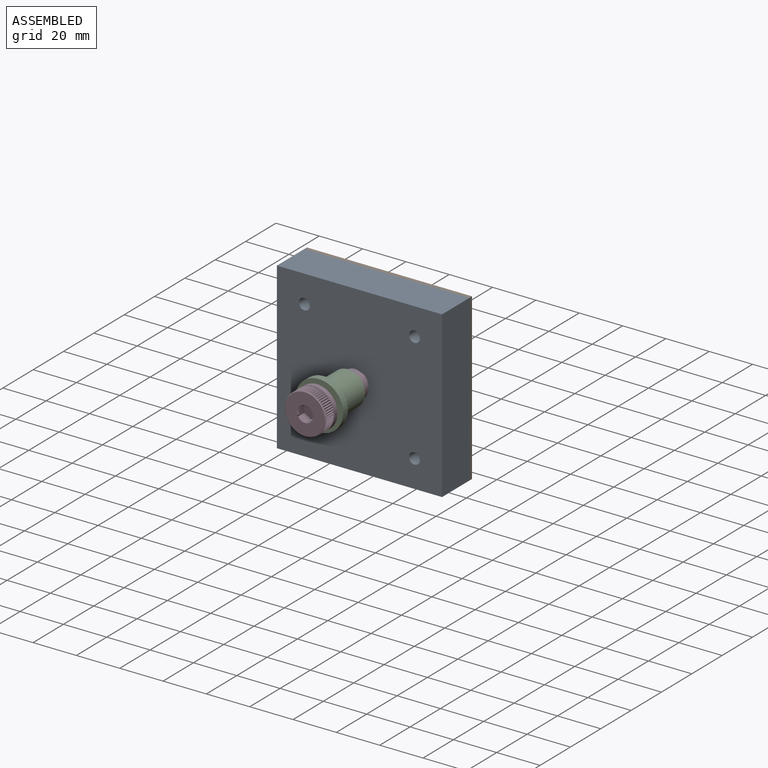
[diagram: assembled view]
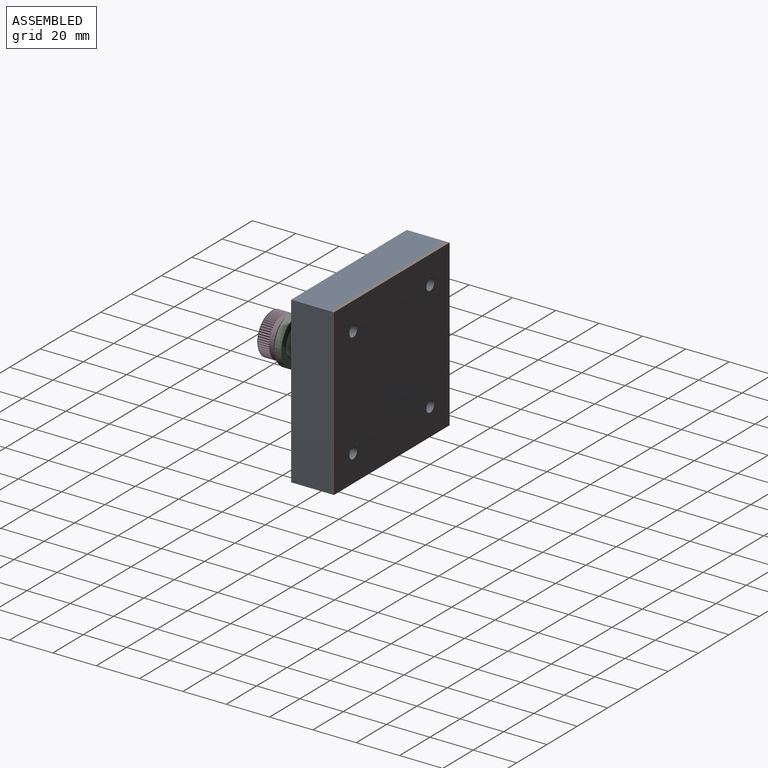
[diagram: assembled view, second angle]
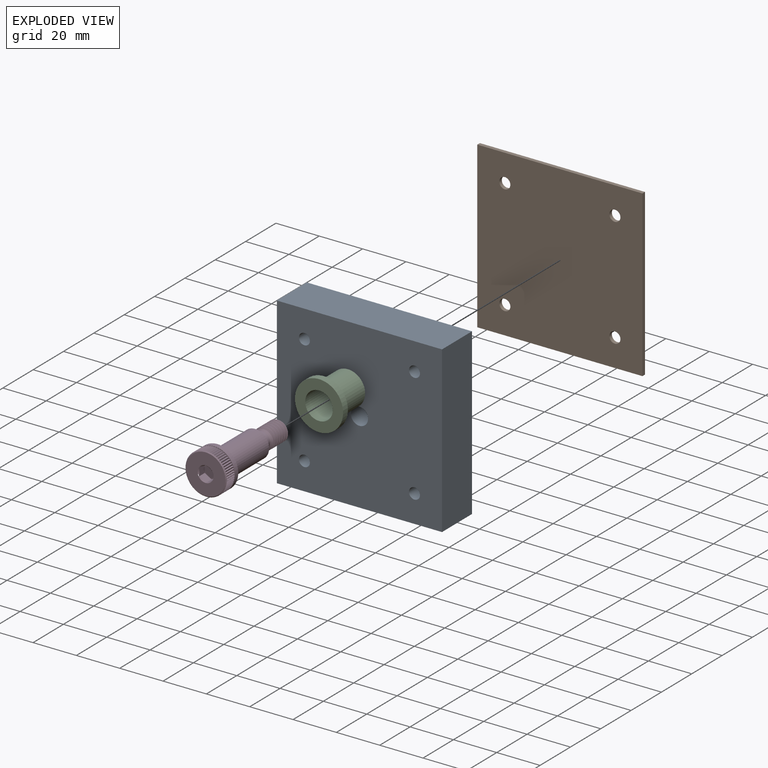
[diagram: exploded view]
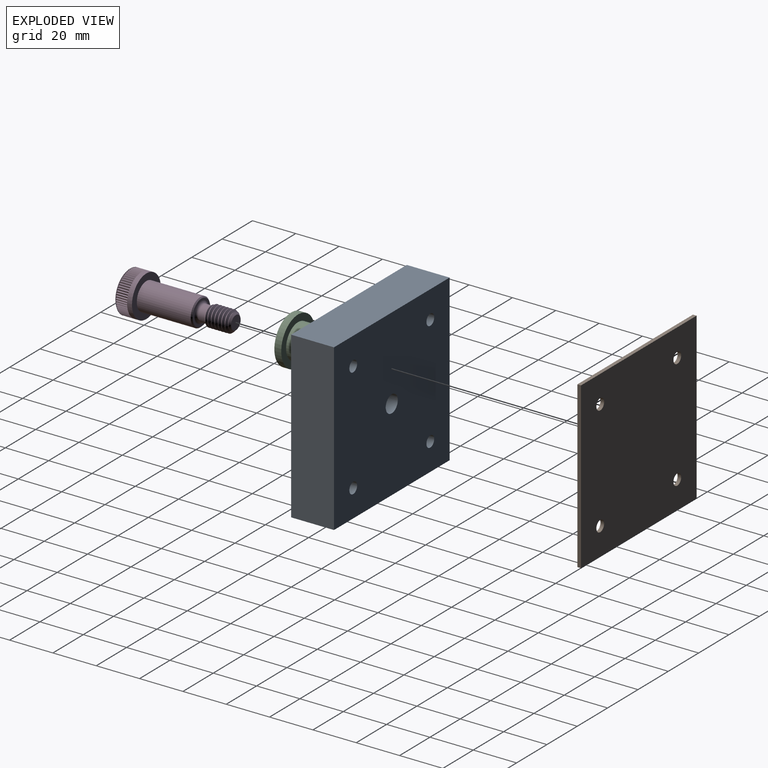
[diagram: exploded view, second angle]
ASSEMBLY  parts=4 mates=3
PART A: 11 faces, bbox 76.2x19.8x76.2 mm
  f0: plane 76.2x76.2mm, normal (0,-1,0), area 5675.1mm2, adj f2,f3,f4,f5,f6,f7,f8,f9
  f1: plane 76.2x76.2mm, normal (0,1,0), area 5675.1mm2, adj f2,f3,f4,f5,f6,f7,f8,f9
  f2: plane 76.2x19.76mm, normal (0,0,-1), area 1505.8mm2, adj f0,f1,f3,f5
  f3: plane 76.2x19.76mm, normal (1,0,0), area 1505.8mm2, adj f0,f1,f2,f4
  f4: plane 76.2x19.76mm, normal (0,0,1), area 1505.8mm2, adj f0,f1,f3,f5
  f5: plane 76.2x19.76mm, normal (-1,0,0), area 1505.8mm2, adj f0,f1,f2,f4
  f6: cylinder r=2.55mm len=19.76mm, axis (0,-1,0), area 317mm2, adj f0,f1
  f7: cylinder r=2.55mm len=19.76mm, axis (0,-1,0), area 317mm2, adj f0,f1
  f8: cylinder r=2.55mm len=19.76mm, axis (0,-1,0), area 317mm2, adj f0,f1
  f9: cylinder r=2.55mm len=19.76mm, axis (0,-1,0), area 317mm2, adj f0,f1
  f10: cylinder r=3.97mm len=19.76mm, axis (0,-1,0), area 492.8mm2, adj f0,f1
PART B: 10 faces, bbox 76.2x1.7x76.2 mm
  f0: plane 76.2x76.2mm, normal (0,-1,0), area 5724.6mm2, adj f2,f3,f4,f5,f6,f7,f8,f9
  f1: plane 76.2x76.2mm, normal (0,1,0), area 5724.6mm2, adj f2,f3,f4,f5,f6,f7,f8,f9
  f2: plane 76.2x1.68mm, normal (0,0,-1), area 127.7mm2, adj f0,f1,f3,f5
  f3: plane 76.2x1.68mm, normal (1,0,0), area 127.7mm2, adj f0,f1,f2,f4
  f4: plane 76.2x1.68mm, normal (0,0,1), area 127.7mm2, adj f0,f1,f3,f5
  f5: plane 76.2x1.68mm, normal (-1,0,0), area 127.7mm2, adj f0,f1,f2,f4
  f6: cylinder r=2.55mm len=5.11mm, axis (0,-1,0), area 26.9mm2, adj f0,f1
  f7: cylinder r=2.55mm len=5.11mm, axis (0,-1,0), area 26.9mm2, adj f0,f1
  f8: cylinder r=2.55mm len=5.11mm, axis (0,-1,0), area 26.9mm2, adj f0,f1
  f9: cylinder r=2.55mm len=5.11mm, axis (0,-1,0), area 26.9mm2, adj f0,f1
PART C: 6 faces, bbox 22.2x22.2x19.1 mm
  f0: plane 15.88x15.88mm, normal (0,0,1), area 70.2mm2, adj f2,f3
  f1: plane 22.23x22.23mm, normal (0,0,-1), area 260.3mm2, adj f3,f5
  f2: cylinder r=7.94mm len=15.88mm, axis (0,0,-1), area 791.7mm2, adj f0,f4
  f3: cylinder r=6.38mm len=19.05mm, axis (0,0,-1), area 763.1mm2, adj f0,f1
  f4: plane 22.23x22.23mm, normal (0,0,1), area 190mm2, adj f2,f5
  f5: cylinder r=11.11mm len=22.23mm, axis (0,0,-1), area 221.7mm2, adj f1,f4
PART D: 332 faces, bbox 20.4x20.4x50.9 mm
  f0: cylinder r=9.53mm len=19.05mm, axis (0,0,-1), area 134.6mm2, adj f1,f257,f258,f259,f260,f261,f262,f263
  f1: plane 0.99x0.51mm, normal (0,0,1), area 0.3mm2, adj f0,f2,f255,f256
  f2: plane 5.29x0.48mm, normal (-0.78,0.63,0), area 3.3mm2, adj f1,f3,f254,f255
  f3: plane 5.29x0.44mm, normal (0.71,0.71,0), area 3.3mm2, adj f2,f4,f253,f315
  f4: cylinder r=0.09mm len=5.29mm, axis (0,0,1), area 0.7mm2, adj f3,f5,f253,f315
  f5: plane 5.29x0.44mm, normal (-0.71,0.71,0), area 3.3mm2, adj f4,f6,f253,f315
  f6: plane 5.29x0.48mm, normal (0.78,0.63,0), area 3.3mm2, adj f5,f7,f252,f314
  f7: cylinder r=0.09mm len=5.29mm, axis (0,0,1), area 0.7mm2, adj f6,f8,f252,f314
  f8: plane 5.29x0.48mm, normal (-0.63,0.78,0), area 3.3mm2, adj f7,f9,f252,f314
  f9: plane 5.29x0.52mm, normal (0.84,0.54,0), area 3.3mm2, adj f8,f10,f251,f313
  f10: cylinder r=0.09mm len=5.29mm, axis (0,0,1), area 0.7mm2, adj f9,f11,f251,f313
  f11: plane 5.29x0.52mm, normal (-0.54,0.84,0), area 3.3mm2, adj f10,f12,f251,f313
  f12: plane 5.29x0.55mm, normal (0.89,0.45,0), area 3.3mm2, adj f11,f13,f250,f312
  f13: cylinder r=0.09mm len=5.29mm, axis (0,0,1), area 0.7mm2, adj f12,f14,f250,f312
  f14: plane 5.29x0.55mm, normal (-0.45,0.89,0), area 3.3mm2, adj f13,f15,f250,f312
  f15: plane 5.29x0.58mm, normal (0.93,0.36,0), area 3.3mm2, adj f14,f16,f249,f311
  f16: cylinder r=0.09mm len=5.29mm, axis (0,0,1), area 0.7mm2, adj f15,f17,f249,f311
  f17: plane 5.29x0.58mm, normal (-0.36,0.93,0), area 3.3mm2, adj f16,f18,f249,f311
  f18: plane 5.29x0.6mm, normal (0.97,0.26,0), area 3.3mm2, adj f17,f19,f248,f310
  f19: cylinder r=0.09mm len=5.29mm, axis (0,0,1), area 0.7mm2, adj f18,f20,f248,f310
  f20: plane 5.29x0.6mm, normal (-0.26,0.97,0), area 3.3mm2, adj f19,f21,f248,f310
  f21: plane 5.29x0.61mm, normal (0.99,0.16,0), area 3.3mm2, adj f20,f22,f247,f309
  f22: cylinder r=0.09mm len=5.29mm, axis (0,0,1), area 0.7mm2, adj f21,f23,f247,f309
  f23: plane 5.29x0.61mm, normal (-0.16,0.99,0), area 3.3mm2, adj f22,f24,f247,f309
  f24: plane 5.29x0.62mm, normal (1,0.05,0), area 3.3mm2, adj f23,f25,f246,f308
  f25: cylinder r=0.09mm len=5.29mm, axis (0,0,1), area 0.7mm2, adj f24,f26,f246,f308
  f26: plane 5.29x0.62mm, normal (-0.05,1,0), area 3.3mm2, adj f25,f27,f246,f308
  f27: plane 5.29x0.62mm, normal (1,-0.05,0), area 3.3mm2, adj f26,f28,f245,f307
  f28: cylinder r=0.09mm len=5.29mm, axis (0,0,1), area 0.7mm2, adj f27,f29,f245,f307
  f29: plane 5.29x0.62mm, normal (0.05,1,0), area 3.3mm2, adj f28,f30,f245,f307
  f30: plane 5.29x0.61mm, normal (0.99,-0.16,0), area 3.3mm2, adj f29,f31,f244,f306
  f31: cylinder r=0.09mm len=5.29mm, axis (0,0,1), area 0.7mm2, adj f30,f32,f244,f306
  f32: plane 5.29x0.61mm, normal (0.16,0.99,0), area 3.3mm2, adj f31,f33,f244,f306
  f33: plane 5.29x0.6mm, normal (0.97,-0.26,0), area 3.3mm2, adj f32,f34,f243,f305
  f34: cylinder r=0.09mm len=5.29mm, axis (0,0,1), area 0.7mm2, adj f33,f35,f243,f305
  f35: plane 5.29x0.6mm, normal (0.26,0.97,0), area 3.3mm2, adj f34,f36,f243,f305
  f36: plane 5.29x0.58mm, normal (0.93,-0.36,0), area 3.3mm2, adj f35,f37,f242,f304
  f37: cylinder r=0.09mm len=5.29mm, axis (0,0,1), area 0.7mm2, adj f36,f38,f242,f304
  f38: plane 5.29x0.58mm, normal (0.36,0.93,0), area 3.3mm2, adj f37,f39,f242,f304
  f39: plane 5.29x0.55mm, normal (0.89,-0.45,0), area 3.3mm2, adj f38,f40,f241,f303
  f40: cylinder r=0.09mm len=5.29mm, axis (0,0,1), area 0.7mm2, adj f39,f41,f241,f303
  f41: plane 5.29x0.55mm, normal (0.45,0.89,0), area 3.3mm2, adj f40,f42,f241,f303
  f42: plane 5.29x0.52mm, normal (0.84,-0.54,0), area 3.3mm2, adj f41,f43,f240,f302
  f43: cylinder r=0.09mm len=5.29mm, axis (0,0,1), area 0.7mm2, adj f42,f44,f240,f302
  f44: plane 5.29x0.52mm, normal (0.54,0.84,0), area 3.3mm2, adj f43,f45,f240,f302
  f45: plane 5.29x0.48mm, normal (0.78,-0.63,0), area 3.3mm2, adj f44,f46,f239,f301
  f46: cylinder r=0.09mm len=5.29mm, axis (0,0,1), area 0.7mm2, adj f45,f47,f239,f301
  f47: plane 5.29x0.48mm, normal (0.63,0.78,0), area 3.3mm2, adj f46,f48,f239,f301
  f48: plane 5.29x0.44mm, normal (0.71,-0.71,0), area 3.3mm2, adj f47,f49,f238,f300
  f49: cylinder r=0.09mm len=5.29mm, axis (0,0,1), area 0.7mm2, adj f48,f50,f238,f300
  f50: plane 5.29x0.44mm, normal (0.71,0.71,0), area 3.3mm2, adj f49,f51,f238,f300
  f51: plane 5.29x0.48mm, normal (0.63,-0.78,0), area 3.3mm2, adj f50,f52,f237,f299
  f52: cylinder r=0.09mm len=5.29mm, axis (0,0,1), area 0.7mm2, adj f51,f53,f237,f299
  f53: plane 5.29x0.48mm, normal (0.78,0.63,0), area 3.3mm2, adj f52,f54,f237,f299
  f54: plane 5.29x0.52mm, normal (0.54,-0.84,0), area 3.3mm2, adj f53,f55,f236,f298
  f55: cylinder r=0.09mm len=5.29mm, axis (0,0,1), area 0.7mm2, adj f54,f56,f236,f298
  f56: plane 5.29x0.52mm, normal (0.84,0.54,0), area 3.3mm2, adj f55,f57,f236,f298
  f57: plane 5.29x0.55mm, normal (0.45,-0.89,0), area 3.3mm2, adj f56,f58,f235,f297
  f58: cylinder r=0.09mm len=5.29mm, axis (0,0,1), area 0.7mm2, adj f57,f59,f235,f297
  f59: plane 5.29x0.55mm, normal (0.89,0.45,0), area 3.3mm2, adj f58,f60,f235,f297
  f60: plane 5.29x0.58mm, normal (0.36,-0.93,0), area 3.3mm2, adj f59,f61,f234,f296
  f61: cylinder r=0.09mm len=5.29mm, axis (0,0,1), area 0.7mm2, adj f60,f62,f234,f296
  f62: plane 5.29x0.58mm, normal (0.93,0.36,0), area 3.3mm2, adj f61,f63,f234,f296
  f63: plane 5.29x0.6mm, normal (0.26,-0.97,0), area 3.3mm2, adj f62,f64,f233,f295
  f64: cylinder r=0.09mm len=5.29mm, axis (0,0,1), area 0.7mm2, adj f63,f65,f233,f295
  f65: plane 5.29x0.6mm, normal (0.97,0.26,0), area 3.3mm2, adj f64,f66,f233,f295
  f66: plane 5.29x0.61mm, normal (0.16,-0.99,0), area 3.3mm2, adj f65,f67,f232,f294
  f67: cylinder r=0.09mm len=5.29mm, axis (0,0,1), area 0.7mm2, adj f66,f68,f232,f294
  f68: plane 5.29x0.61mm, normal (0.99,0.16,0), area 3.3mm2, adj f67,f69,f232,f294
  f69: plane 5.29x0.62mm, normal (0.05,-1,0), area 3.3mm2, adj f68,f70,f231,f293
  f70: cylinder r=0.09mm len=5.29mm, axis (0,0,1), area 0.7mm2, adj f69,f71,f231,f293
  f71: plane 5.29x0.62mm, normal (1,0.05,0), area 3.3mm2, adj f70,f72,f231,f293
  f72: plane 5.29x0.62mm, normal (-0.05,-1,0), area 3.3mm2, adj f71,f73,f230,f292
  f73: cylinder r=0.09mm len=5.29mm, axis (0,0,1), area 0.7mm2, adj f72,f74,f230,f292
  f74: plane 5.29x0.62mm, normal (1,-0.05,0), area 3.3mm2, adj f73,f75,f230,f292
  f75: plane 5.29x0.61mm, normal (-0.16,-0.99,0), area 3.3mm2, adj f74,f76,f229,f291
  f76: cylinder r=0.09mm len=5.29mm, axis (0,0,1), area 0.7mm2, adj f75,f77,f229,f291
  f77: plane 5.29x0.61mm, normal (0.99,-0.16,0), area 3.3mm2, adj f76,f78,f229,f291
  f78: plane 5.29x0.6mm, normal (-0.26,-0.97,0), area 3.3mm2, adj f77,f79,f228,f290
  f79: cylinder r=0.09mm len=5.29mm, axis (0,0,1), area 0.7mm2, adj f78,f80,f228,f290
  f80: plane 5.29x0.6mm, normal (0.97,-0.26,0), area 3.3mm2, adj f79,f81,f228,f290
  f81: plane 5.29x0.58mm, normal (-0.36,-0.93,0), area 3.3mm2, adj f80,f82,f227,f289
  f82: cylinder r=0.09mm len=5.29mm, axis (0,0,1), area 0.7mm2, adj f81,f83,f227,f289
  f83: plane 5.29x0.58mm, normal (0.93,-0.36,0), area 3.3mm2, adj f82,f84,f227,f289
  f84: plane 5.29x0.55mm, normal (-0.45,-0.89,0), area 3.3mm2, adj f83,f85,f226,f288
  f85: cylinder r=0.09mm len=5.29mm, axis (0,0,1), area 0.7mm2, adj f84,f86,f226,f288
  f86: plane 5.29x0.55mm, normal (0.89,-0.45,0), area 3.3mm2, adj f85,f87,f226,f288
  f87: plane 5.29x0.52mm, normal (-0.54,-0.84,0), area 3.3mm2, adj f86,f88,f225,f287
  f88: cylinder r=0.09mm len=5.29mm, axis (0,0,1), area 0.7mm2, adj f87,f89,f225,f287
  f89: plane 5.29x0.52mm, normal (0.84,-0.54,0), area 3.3mm2, adj f88,f90,f225,f287
  f90: plane 5.29x0.48mm, normal (-0.63,-0.78,0), area 3.3mm2, adj f89,f91,f224,f286
  f91: cylinder r=0.09mm len=5.29mm, axis (0,0,1), area 0.7mm2, adj f90,f92,f224,f286
  f92: plane 5.29x0.48mm, normal (0.78,-0.63,0), area 3.3mm2, adj f91,f93,f224,f286
  f93: plane 5.29x0.44mm, normal (-0.71,-0.71,0), area 3.3mm2, adj f92,f94,f223,f285
  f94: cylinder r=0.09mm len=5.29mm, axis (0,0,1), area 0.7mm2, adj f93,f95,f223,f285
  f95: plane 5.29x0.44mm, normal (0.71,-0.71,0), area 3.3mm2, adj f94,f96,f223,f285
  f96: plane 5.29x0.48mm, normal (-0.78,-0.63,0), area 3.3mm2, adj f95,f97,f222,f284
  f97: cylinder r=0.09mm len=5.29mm, axis (0,0,1), area 0.7mm2, adj f96,f98,f222,f284
  f98: plane 5.29x0.48mm, normal (0.63,-0.78,0), area 3.3mm2, adj f97,f99,f222,f284
  f99: plane 5.29x0.52mm, normal (-0.84,-0.54,0), area 3.3mm2, adj f98,f100,f221,f283
  f100: cylinder r=0.09mm len=5.29mm, axis (0,0,1), area 0.7mm2, adj f99,f101,f221,f283
  f101: plane 5.29x0.52mm, normal (0.54,-0.84,0), area 3.3mm2, adj f100,f102,f221,f283
  f102: plane 5.29x0.55mm, normal (-0.89,-0.45,0), area 3.3mm2, adj f101,f103,f220,f282
  f103: cylinder r=0.09mm len=5.29mm, axis (0,0,1), area 0.7mm2, adj f102,f104,f220,f282
  f104: plane 5.29x0.55mm, normal (0.45,-0.89,0), area 3.3mm2, adj f103,f105,f220,f282
  f105: plane 5.29x0.58mm, normal (-0.93,-0.36,0), area 3.3mm2, adj f104,f106,f219,f281
  f106: cylinder r=0.09mm len=5.29mm, axis (0,0,1), area 0.7mm2, adj f105,f107,f219,f281
  f107: plane 5.29x0.58mm, normal (0.36,-0.93,0), area 3.3mm2, adj f106,f108,f219,f281
  f108: plane 5.29x0.6mm, normal (-0.97,-0.26,0), area 3.3mm2, adj f107,f109,f218,f280
  f109: cylinder r=0.09mm len=5.29mm, axis (0,0,1), area 0.7mm2, adj f108,f110,f218,f280
  f110: plane 5.29x0.6mm, normal (0.26,-0.97,0), area 3.3mm2, adj f109,f111,f218,f280
  f111: plane 5.29x0.61mm, normal (-0.99,-0.16,0), area 3.3mm2, adj f110,f112,f217,f279
  f112: cylinder r=0.09mm len=5.29mm, axis (0,0,1), area 0.7mm2, adj f111,f113,f217,f279
  f113: plane 5.29x0.61mm, normal (0.16,-0.99,0), area 3.3mm2, adj f112,f114,f217,f279
  f114: plane 5.29x0.62mm, normal (-1,-0.05,0), area 3.3mm2, adj f113,f115,f216,f278
  f115: cylinder r=0.09mm len=5.29mm, axis (0,0,1), area 0.7mm2, adj f114,f116,f216,f278
  f116: plane 5.29x0.62mm, normal (0.05,-1,0), area 3.3mm2, adj f115,f117,f216,f278
  f117: plane 5.29x0.62mm, normal (-1,0.05,0), area 3.3mm2, adj f116,f118,f215,f277
  f118: cylinder r=0.09mm len=5.29mm, axis (0,0,1), area 0.7mm2, adj f117,f119,f215,f277
  f119: plane 5.29x0.62mm, normal (-0.05,-1,0), area 3.3mm2, adj f118,f120,f215,f277
  f120: plane 5.29x0.61mm, normal (-0.99,0.16,0), area 3.3mm2, adj f119,f121,f214,f276
  f121: cylinder r=0.09mm len=5.29mm, axis (0,0,1), area 0.7mm2, adj f120,f122,f214,f276
  f122: plane 5.29x0.61mm, normal (-0.16,-0.99,0), area 3.3mm2, adj f121,f123,f214,f276
  f123: plane 5.29x0.6mm, normal (-0.97,0.26,0), area 3.3mm2, adj f122,f124,f213,f275
  f124: cylinder r=0.09mm len=5.29mm, axis (0,0,1), area 0.7mm2, adj f123,f125,f213,f275
  f125: plane 5.29x0.6mm, normal (-0.26,-0.97,0), area 3.3mm2, adj f124,f126,f213,f275
  f126: plane 5.29x0.58mm, normal (-0.93,0.36,0), area 3.3mm2, adj f125,f127,f212,f274
  f127: cylinder r=0.09mm len=5.29mm, axis (0,0,1), area 0.7mm2, adj f126,f128,f212,f274
  f128: plane 5.29x0.58mm, normal (-0.36,-0.93,0), area 3.3mm2, adj f127,f129,f212,f274
  f129: plane 5.29x0.55mm, normal (-0.89,0.45,0), area 3.3mm2, adj f128,f130,f211,f273
  f130: cylinder r=0.09mm len=5.29mm, axis (0,0,1), area 0.7mm2, adj f129,f131,f211,f273
  f131: plane 5.29x0.55mm, normal (-0.45,-0.89,0), area 3.3mm2, adj f130,f132,f211,f273
  f132: plane 5.29x0.52mm, normal (-0.84,0.54,0), area 3.3mm2, adj f131,f133,f210,f272
  f133: cylinder r=0.09mm len=5.29mm, axis (0,0,1), area 0.7mm2, adj f132,f134,f210,f272
  f134: plane 5.29x0.52mm, normal (-0.54,-0.84,0), area 3.3mm2, adj f133,f135,f210,f272
  f135: plane 5.29x0.48mm, normal (-0.78,0.63,0), area 3.3mm2, adj f134,f136,f209,f271
  f136: cylinder r=0.09mm len=5.29mm, axis (0,0,1), area 0.7mm2, adj f135,f137,f209,f271
  f137: plane 5.29x0.48mm, normal (-0.63,-0.78,0), area 3.3mm2, adj f136,f138,f209,f271
  f138: plane 5.29x0.44mm, normal (-0.71,0.71,0), area 3.3mm2, adj f137,f139,f208,f270
  f139: cylinder r=0.09mm len=5.29mm, axis (0,0,1), area 0.7mm2, adj f138,f140,f208,f270
  f140: plane 5.29x0.44mm, normal (-0.71,-0.71,0), area 3.3mm2, adj f139,f141,f208,f270
  f141: plane 5.29x0.48mm, normal (-0.63,0.78,0), area 3.3mm2, adj f140,f142,f207,f269
  f142: cylinder r=0.09mm len=5.29mm, axis (0,0,1), area 0.7mm2, adj f141,f143,f207,f269
  f143: plane 5.29x0.48mm, normal (-0.78,-0.63,0), area 3.3mm2, adj f142,f144,f207,f269
  f144: plane 5.29x0.52mm, normal (-0.54,0.84,0), area 3.3mm2, adj f143,f145,f206,f268
  f145: cylinder r=0.09mm len=5.29mm, axis (0,0,1), area 0.7mm2, adj f144,f146,f206,f268
  f146: plane 5.29x0.52mm, normal (-0.84,-0.54,0), area 3.3mm2, adj f145,f147,f206,f268
  f147: plane 5.29x0.55mm, normal (-0.45,0.89,0), area 3.3mm2, adj f146,f148,f205,f267
  f148: cylinder r=0.09mm len=5.29mm, axis (0,0,1), area 0.7mm2, adj f147,f149,f205,f267
  f149: plane 5.29x0.55mm, normal (-0.89,-0.45,0), area 3.3mm2, adj f148,f150,f205,f267
  f150: plane 5.29x0.58mm, normal (-0.36,0.93,0), area 3.3mm2, adj f149,f151,f204,f266
  f151: cylinder r=0.09mm len=5.29mm, axis (0,0,1), area 0.7mm2, adj f150,f152,f204,f266
  f152: plane 5.29x0.58mm, normal (-0.93,-0.36,0), area 3.3mm2, adj f151,f153,f204,f266
  f153: plane 5.29x0.6mm, normal (-0.26,0.97,0), area 3.3mm2, adj f152,f154,f203,f265
  f154: cylinder r=0.09mm len=5.29mm, axis (0,0,1), area 0.7mm2, adj f153,f155,f203,f265
  f155: plane 5.29x0.6mm, normal (-0.97,-0.26,0), area 3.3mm2, adj f154,f156,f203,f265
  f156: plane 5.29x0.61mm, normal (-0.16,0.99,0), area 3.3mm2, adj f155,f157,f202,f264
  f157: cylinder r=0.09mm len=5.29mm, axis (0,0,1), area 0.7mm2, adj f156,f158,f202,f264
  f158: plane 5.29x0.61mm, normal (-0.99,-0.16,0), area 3.3mm2, adj f157,f159,f202,f264
  f159: plane 5.29x0.62mm, normal (-0.05,1,0), area 3.3mm2, adj f158,f160,f201,f263
  f160: cylinder r=0.09mm len=5.29mm, axis (0,0,1), area 0.7mm2, adj f159,f161,f201,f263
  f161: plane 5.29x0.62mm, normal (-1,-0.05,0), area 3.3mm2, adj f160,f162,f201,f263
  f162: plane 5.29x0.62mm, normal (0.05,1,0), area 3.3mm2, adj f161,f163,f200,f262
  f163: cylinder r=0.09mm len=5.29mm, axis (0,0,1), area 0.7mm2, adj f162,f164,f200,f262
  f164: plane 5.29x0.62mm, normal (-1,0.05,0), area 3.3mm2, adj f163,f165,f200,f262
  f165: plane 5.29x0.61mm, normal (0.16,0.99,0), area 3.3mm2, adj f164,f166,f199,f261
  f166: cylinder r=0.09mm len=5.29mm, axis (0,0,1), area 0.7mm2, adj f165,f167,f199,f261
  f167: plane 5.29x0.61mm, normal (-0.99,0.16,0), area 3.3mm2, adj f166,f168,f199,f261
  f168: plane 5.29x0.6mm, normal (0.26,0.97,0), area 3.3mm2, adj f167,f169,f198,f260
  f169: cylinder r=0.09mm len=5.29mm, axis (0,0,1), area 0.7mm2, adj f168,f170,f198,f260
  f170: plane 5.29x0.6mm, normal (-0.97,0.26,0), area 3.3mm2, adj f169,f171,f198,f260
  f171: plane 5.29x0.58mm, normal (0.36,0.93,0), area 3.3mm2, adj f170,f172,f197,f259
  f172: cylinder r=0.09mm len=5.29mm, axis (0,0,1), area 0.7mm2, adj f171,f173,f197,f259
  f173: plane 5.29x0.58mm, normal (-0.93,0.36,0), area 3.3mm2, adj f172,f174,f197,f259
  f174: plane 5.29x0.55mm, normal (0.45,0.89,0), area 3.3mm2, adj f173,f175,f196,f258
  f175: cylinder r=0.09mm len=5.29mm, axis (0,0,1), area 0.7mm2, adj f174,f176,f196,f258
  f176: plane 5.29x0.55mm, normal (-0.89,0.45,0), area 3.3mm2, adj f175,f177,f196,f258
  f177: plane 5.29x0.52mm, normal (0.54,0.84,0), area 3.3mm2, adj f176,f178,f180,f257
  f178: cylinder r=0.09mm len=5.29mm, axis (0,0,1), area 0.7mm2, adj f177,f179,f180,f257
  f179: plane 5.29x0.52mm, normal (-0.84,0.54,0), area 3.3mm2, adj f178,f180,f256,f257
  f180: plane 0.98x0.56mm, normal (0,0,-1), area 0.3mm2, adj f177,f178,f179,f181
  f181: cone r=9.13mm half-angle=45deg, axis (0,0,-1), area 32.9mm2, adj f180,f182,f196,f197,f198,f199,f200,f201
  f182: plane 19.45x19.45mm, normal (0,0,1), area 219.5mm2, adj f181,f183,f191,f192,f193,f194,f195
  f183: cone r=3.67mm half-angle=45deg, axis (0,0,1), area 0mm2, adj f182,f184
  f184: plane 5.36x5.06mm, normal (-1,0,0), area 13.4mm2, adj f183,f185,f189,f190
  f185: plane 7.33x6.35mm, normal (0,0,1), area 34.9mm2, adj f184,f186,f187,f188,f189,f190
  f186: plane 5.36x4.56mm, normal (0.5,0.87,0), area 13.4mm2, adj f185,f187,f190,f194
  f187: plane 5.36x5.06mm, normal (1,0,0), area 13.4mm2, adj f185,f186,f188,f193
  f188: plane 5.36x4.56mm, normal (0.5,-0.87,0), area 13.4mm2, adj f185,f187,f189,f192
  f189: plane 5.36x4.56mm, normal (-0.5,-0.87,0), area 13.4mm2, adj f184,f185,f188,f191
  f190: plane 5.36x4.56mm, normal (-0.5,0.87,0), area 13.4mm2, adj f184,f185,f186,f195
  f191: cone r=3.67mm half-angle=45deg, axis (0,0,1), area 0mm2, adj f182,f189
  f192: cone r=3.67mm half-angle=45deg, axis (0,0,1), area 0mm2, adj f182,f188
  f193: cone r=3.67mm half-angle=45deg, axis (0,0,1), area 0mm2, adj f182,f187
  f194: cone r=3.67mm half-angle=45deg, axis (0,0,1), area 0mm2, adj f182,f186
  f195: cone r=3.67mm half-angle=45deg, axis (0,0,1), area 0mm2, adj f182,f190
  f196: plane 0.95x0.6mm, normal (0,0,-1), area 0.3mm2, adj f174,f175,f176,f181
  f197: plane 0.91x0.63mm, normal (0,0,-1), area 0.3mm2, adj f171,f172,f173,f181
  f198: plane 0.86x0.66mm, normal (0,0,-1), area 0.3mm2, adj f168,f169,f170,f181
  f199: plane 0.81x0.68mm, normal (0,0,-1), area 0.3mm2, adj f165,f166,f167,f181
  f200: plane 0.74x0.7mm, normal (0,0,-1), area 0.3mm2, adj f162,f163,f164,f181
  f201: plane 0.74x0.7mm, normal (0,0,-1), area 0.3mm2, adj f159,f160,f161,f181
  f202: plane 0.81x0.68mm, normal (0,0,-1), area 0.3mm2, adj f156,f157,f158,f181
  f203: plane 0.86x0.66mm, normal (0,0,-1), area 0.3mm2, adj f153,f154,f155,f181
  f204: plane 0.91x0.63mm, normal (0,0,-1), area 0.3mm2, adj f150,f151,f152,f181
  f205: plane 0.95x0.6mm, normal (0,0,-1), area 0.3mm2, adj f147,f148,f149,f181
  f206: plane 0.98x0.56mm, normal (0,0,-1), area 0.3mm2, adj f144,f145,f146,f181
  f207: plane 0.99x0.51mm, normal (0,0,-1), area 0.3mm2, adj f141,f142,f143,f181
  f208: plane 1x0.48mm, normal (0,0,-1), area 0.3mm2, adj f138,f139,f140,f181
  f209: plane 0.99x0.51mm, normal (0,0,-1), area 0.3mm2, adj f135,f136,f137,f181
  f210: plane 0.98x0.56mm, normal (0,0,-1), area 0.3mm2, adj f132,f133,f134,f181
  f211: plane 0.95x0.6mm, normal (0,0,-1), area 0.3mm2, adj f129,f130,f131,f181
  f212: plane 0.91x0.63mm, normal (0,0,-1), area 0.3mm2, adj f126,f127,f128,f181
  f213: plane 0.86x0.66mm, normal (0,0,-1), area 0.3mm2, adj f123,f124,f125,f181
  f214: plane 0.81x0.68mm, normal (0,0,-1), area 0.3mm2, adj f120,f121,f122,f181
  f215: plane 0.74x0.7mm, normal (0,0,-1), area 0.3mm2, adj f117,f118,f119,f181
  f216: plane 0.74x0.7mm, normal (0,0,-1), area 0.3mm2, adj f114,f115,f116,f181
  f217: plane 0.81x0.68mm, normal (0,0,-1), area 0.3mm2, adj f111,f112,f113,f181
  f218: plane 0.86x0.66mm, normal (0,0,-1), area 0.3mm2, adj f108,f109,f110,f181
  f219: plane 0.91x0.63mm, normal (0,0,-1), area 0.3mm2, adj f105,f106,f107,f181
  f220: plane 0.95x0.6mm, normal (0,0,-1), area 0.3mm2, adj f102,f103,f104,f181
  f221: plane 0.98x0.56mm, normal (0,0,-1), area 0.3mm2, adj f99,f100,f101,f181
  f222: plane 0.99x0.51mm, normal (0,0,-1), area 0.3mm2, adj f96,f97,f98,f181
  f223: plane 1x0.48mm, normal (0,0,-1), area 0.3mm2, adj f93,f94,f95,f181
  f224: plane 0.99x0.51mm, normal (0,0,-1), area 0.3mm2, adj f90,f91,f92,f181
  f225: plane 0.98x0.56mm, normal (0,0,-1), area 0.3mm2, adj f87,f88,f89,f181
  f226: plane 0.95x0.6mm, normal (0,0,-1), area 0.3mm2, adj f84,f85,f86,f181
  f227: plane 0.91x0.63mm, normal (0,0,-1), area 0.3mm2, adj f81,f82,f83,f181
  f228: plane 0.86x0.66mm, normal (0,0,-1), area 0.3mm2, adj f78,f79,f80,f181
  f229: plane 0.81x0.68mm, normal (0,0,-1), area 0.3mm2, adj f75,f76,f77,f181
  f230: plane 0.74x0.7mm, normal (0,0,-1), area 0.3mm2, adj f72,f73,f74,f181
  f231: plane 0.74x0.7mm, normal (0,0,-1), area 0.3mm2, adj f69,f70,f71,f181
  f232: plane 0.81x0.68mm, normal (0,0,-1), area 0.3mm2, adj f66,f67,f68,f181
  f233: plane 0.86x0.66mm, normal (0,0,-1), area 0.3mm2, adj f63,f64,f65,f181
  f234: plane 0.91x0.63mm, normal (0,0,-1), area 0.3mm2, adj f60,f61,f62,f181
  f235: plane 0.95x0.6mm, normal (0,0,-1), area 0.3mm2, adj f57,f58,f59,f181
  f236: plane 0.98x0.56mm, normal (0,0,-1), area 0.3mm2, adj f54,f55,f56,f181
  f237: plane 0.99x0.51mm, normal (0,0,-1), area 0.3mm2, adj f51,f52,f53,f181
  f238: plane 1x0.48mm, normal (0,0,-1), area 0.3mm2, adj f48,f49,f50,f181
  f239: plane 0.99x0.51mm, normal (0,0,-1), area 0.3mm2, adj f45,f46,f47,f181
  f240: plane 0.98x0.56mm, normal (0,0,-1), area 0.3mm2, adj f42,f43,f44,f181
  f241: plane 0.95x0.6mm, normal (0,0,-1), area 0.3mm2, adj f39,f40,f41,f181
  f242: plane 0.91x0.63mm, normal (0,0,-1), area 0.3mm2, adj f36,f37,f38,f181
  f243: plane 0.86x0.66mm, normal (0,0,-1), area 0.3mm2, adj f33,f34,f35,f181
  f244: plane 0.81x0.68mm, normal (0,0,-1), area 0.3mm2, adj f30,f31,f32,f181
  f245: plane 0.74x0.7mm, normal (0,0,-1), area 0.3mm2, adj f27,f28,f29,f181
  f246: plane 0.74x0.7mm, normal (0,0,-1), area 0.3mm2, adj f24,f25,f26,f181
  f247: plane 0.81x0.68mm, normal (0,0,-1), area 0.3mm2, adj f21,f22,f23,f181
  f248: plane 0.86x0.66mm, normal (0,0,-1), area 0.3mm2, adj f18,f19,f20,f181
  f249: plane 0.91x0.63mm, normal (0,0,-1), area 0.3mm2, adj f15,f16,f17,f181
  f250: plane 0.95x0.6mm, normal (0,0,-1), area 0.3mm2, adj f12,f13,f14,f181
  f251: plane 0.98x0.56mm, normal (0,0,-1), area 0.3mm2, adj f9,f10,f11,f181
  f252: plane 0.99x0.51mm, normal (0,0,-1), area 0.3mm2, adj f6,f7,f8,f181
  f253: plane 1x0.48mm, normal (0,0,-1), area 0.3mm2, adj f3,f4,f5,f181
  f254: plane 0.99x0.51mm, normal (0,0,-1), area 0.3mm2, adj f2,f181,f255,f256
  f255: cylinder r=0.09mm len=5.29mm, axis (0,0,1), area 0.7mm2, adj f1,f2,f254,f256
  f256: plane 5.29x0.48mm, normal (0.63,0.78,0), area 3.3mm2, adj f1,f179,f254,f255
  f257: plane 0.98x0.56mm, normal (0,0,1), area 0.3mm2, adj f0,f177,f178,f179
  f258: plane 0.95x0.6mm, normal (0,0,1), area 0.3mm2, adj f0,f174,f175,f176
  f259: plane 0.91x0.63mm, normal (0,0,1), area 0.3mm2, adj f0,f171,f172,f173
  f260: plane 0.86x0.66mm, normal (0,0,1), area 0.3mm2, adj f0,f168,f169,f170
  f261: plane 0.81x0.68mm, normal (0,0,1), area 0.3mm2, adj f0,f165,f166,f167
  f262: plane 0.74x0.7mm, normal (0,0,1), area 0.3mm2, adj f0,f162,f163,f164
  f263: plane 0.74x0.7mm, normal (0,0,1), area 0.3mm2, adj f0,f159,f160,f161
  f264: plane 0.81x0.68mm, normal (0,0,1), area 0.3mm2, adj f0,f156,f157,f158
  f265: plane 0.86x0.66mm, normal (0,0,1), area 0.3mm2, adj f0,f153,f154,f155
  f266: plane 0.91x0.63mm, normal (0,0,1), area 0.3mm2, adj f0,f150,f151,f152
  f267: plane 0.95x0.6mm, normal (0,0,1), area 0.3mm2, adj f0,f147,f148,f149
  f268: plane 0.98x0.56mm, normal (0,0,1), area 0.3mm2, adj f0,f144,f145,f146
  f269: plane 0.99x0.51mm, normal (0,0,1), area 0.3mm2, adj f0,f141,f142,f143
  f270: plane 1x0.48mm, normal (0,0,1), area 0.3mm2, adj f0,f138,f139,f140
  f271: plane 0.99x0.51mm, normal (0,0,1), area 0.3mm2, adj f0,f135,f136,f137
  f272: plane 0.98x0.56mm, normal (0,0,1), area 0.3mm2, adj f0,f132,f133,f134
  f273: plane 0.95x0.6mm, normal (0,0,1), area 0.3mm2, adj f0,f129,f130,f131
  f274: plane 0.91x0.63mm, normal (0,0,1), area 0.3mm2, adj f0,f126,f127,f128
  f275: plane 0.86x0.66mm, normal (0,0,1), area 0.3mm2, adj f0,f123,f124,f125
  f276: plane 0.81x0.68mm, normal (0,0,1), area 0.3mm2, adj f0,f120,f121,f122
  f277: plane 0.74x0.7mm, normal (0,0,1), area 0.3mm2, adj f0,f117,f118,f119
  f278: plane 0.74x0.7mm, normal (0,0,1), area 0.3mm2, adj f0,f114,f115,f116
  f279: plane 0.81x0.68mm, normal (0,0,1), area 0.3mm2, adj f0,f111,f112,f113
  f280: plane 0.86x0.66mm, normal (0,0,1), area 0.3mm2, adj f0,f108,f109,f110
  f281: plane 0.91x0.63mm, normal (0,0,1), area 0.3mm2, adj f0,f105,f106,f107
  f282: plane 0.95x0.6mm, normal (0,0,1), area 0.3mm2, adj f0,f102,f103,f104
  f283: plane 0.98x0.56mm, normal (0,0,1), area 0.3mm2, adj f0,f99,f100,f101
  f284: plane 0.99x0.51mm, normal (0,0,1), area 0.3mm2, adj f0,f96,f97,f98
  f285: plane 1x0.48mm, normal (0,0,1), area 0.3mm2, adj f0,f93,f94,f95
  f286: plane 0.99x0.51mm, normal (0,0,1), area 0.3mm2, adj f0,f90,f91,f92
  f287: plane 0.98x0.56mm, normal (0,0,1), area 0.3mm2, adj f0,f87,f88,f89
  f288: plane 0.95x0.6mm, normal (0,0,1), area 0.3mm2, adj f0,f84,f85,f86
  f289: plane 0.91x0.63mm, normal (0,0,1), area 0.3mm2, adj f0,f81,f82,f83
  f290: plane 0.86x0.66mm, normal (0,0,1), area 0.3mm2, adj f0,f78,f79,f80
  f291: plane 0.81x0.68mm, normal (0,0,1), area 0.3mm2, adj f0,f75,f76,f77
  f292: plane 0.74x0.7mm, normal (0,0,1), area 0.3mm2, adj f0,f72,f73,f74
  f293: plane 0.74x0.7mm, normal (0,0,1), area 0.3mm2, adj f0,f69,f70,f71
  f294: plane 0.81x0.68mm, normal (0,0,1), area 0.3mm2, adj f0,f66,f67,f68
  f295: plane 0.86x0.66mm, normal (0,0,1), area 0.3mm2, adj f0,f63,f64,f65
  f296: plane 0.91x0.63mm, normal (0,0,1), area 0.3mm2, adj f0,f60,f61,f62
  f297: plane 0.95x0.6mm, normal (0,0,1), area 0.3mm2, adj f0,f57,f58,f59
  f298: plane 0.98x0.56mm, normal (0,0,1), area 0.3mm2, adj f0,f54,f55,f56
  f299: plane 0.99x0.51mm, normal (0,0,1), area 0.3mm2, adj f0,f51,f52,f53
  f300: plane 1x0.48mm, normal (0,0,1), area 0.3mm2, adj f0,f48,f49,f50
  f301: plane 0.99x0.51mm, normal (0,0,1), area 0.3mm2, adj f0,f45,f46,f47
  f302: plane 0.98x0.56mm, normal (0,0,1), area 0.3mm2, adj f0,f42,f43,f44
  f303: plane 0.95x0.6mm, normal (0,0,1), area 0.3mm2, adj f0,f39,f40,f41
  f304: plane 0.91x0.63mm, normal (0,0,1), area 0.3mm2, adj f0,f36,f37,f38
  f305: plane 0.86x0.66mm, normal (0,0,1), area 0.3mm2, adj f0,f33,f34,f35
  f306: plane 0.81x0.68mm, normal (0,0,1), area 0.3mm2, adj f0,f30,f31,f32
  f307: plane 0.74x0.7mm, normal (0,0,1), area 0.3mm2, adj f0,f27,f28,f29
  f308: plane 0.74x0.7mm, normal (0,0,1), area 0.3mm2, adj f0,f24,f25,f26
  f309: plane 0.81x0.68mm, normal (0,0,1), area 0.3mm2, adj f0,f21,f22,f23
  f310: plane 0.86x0.66mm, normal (0,0,1), area 0.3mm2, adj f0,f18,f19,f20
  f311: plane 0.91x0.63mm, normal (0,0,1), area 0.3mm2, adj f0,f15,f16,f17
  f312: plane 0.95x0.6mm, normal (0,0,1), area 0.3mm2, adj f0,f12,f13,f14
  f313: plane 0.98x0.56mm, normal (0,0,1), area 0.3mm2, adj f0,f9,f10,f11
  f314: plane 0.99x0.51mm, normal (0,0,1), area 0.3mm2, adj f0,f6,f7,f8
  f315: plane 1x0.48mm, normal (0,0,1), area 0.3mm2, adj f0,f3,f4,f5
  f316: plane 19.05x19.05mm, normal (0,0,-1), area 158.3mm2, adj f0,f317
  f317: cylinder r=6.35mm len=24.87mm, axis (0,0,-1), area 992.3mm2, adj f316,f318
  f318: cone r=5.82mm half-angle=45deg, axis (0,0,1), area 28.6mm2, adj f317,f319
  f319: plane 11.64x11.64mm, normal (0,0,-1), area 35.2mm2, adj f318,f320
  f320: cylinder r=4.76mm len=9.53mm, axis (0,0,1), area 0.1mm2, adj f319,f321
  f321: torus R=4.86mm, axis (0,0,1), area 45.2mm2, adj f320,f322
  f322: cylinder r=3.67mm len=7.34mm, axis (0,0,1), area 64.1mm2, adj f321,f323
  f323: cone r=3.67mm half-angle=45deg, axis (0,0,-1), area 15.7mm2, adj f322,f324,f330,f331
  f324: cylinder r=3.73mm len=11.29mm, axis (0,0,1), area 58.1mm2, adj f323,f325,f329,f330
  f325: cone r=3.17mm half-angle=45deg, axis (0,0,1), area 30.9mm2, adj f324,f326,f328,f329
  f326: cone r=3.17mm half-angle=45deg, axis (0,0,1), area 5mm2, adj f325,f327,f329,f330
  f327: cylinder r=4.76mm len=9.53mm, axis (0,0,1), area 30.5mm2, adj f326,f329,f330,f331
  f328: plane 6.35x6.35mm, normal (0,0,-1), area 31.7mm2, adj f325
  f329: bspline ~12.24x10.62mm, area 204.8mm2, adj f324,f325,f326,f327,f331
  f330: bspline ~11.97x10.62mm, area 203.6mm2, adj f323,f324,f326,f327,f331
  f331: cone r=3.67mm half-angle=45deg, axis (0,0,-1), area 5.1mm2, adj f323,f327,f329,f330
PLACE A t=(14.09,6.48,12.33)mm fixed
PLACE B t=(14.09,24.56,12.33)mm
PLACE C rot(axis=(-0.9,0.31,0.31),95.9deg) t=(14.09,-20.18,12.33)mm
PLACE D rot(axis=(1,0,0),90deg) t=(14.09,-21.5,12.33)mm
MATE fastened A.f10 <-> D.f323  axis (0,-1,0) through (14.09,6.48,12.33)mm
MATE fastened A.f10 <-> B.f1  axis (0,1,0) through (14.09,26.24,12.33)mm
MATE revolute C.f2 <-> D.f0  axis (0,-1,0) through (14.09,-9.07,12.33)mm
